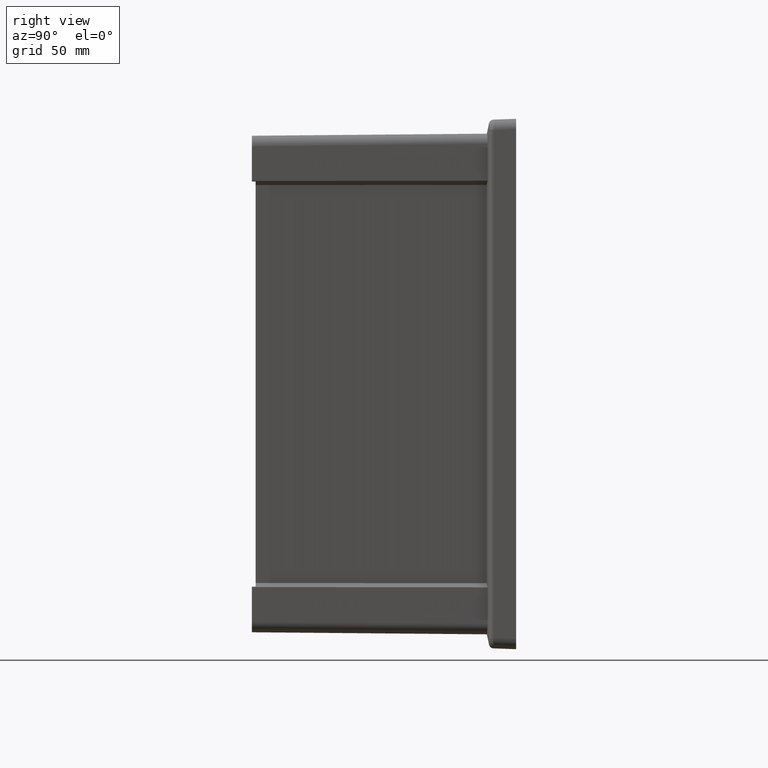
[diagram: clean part render]
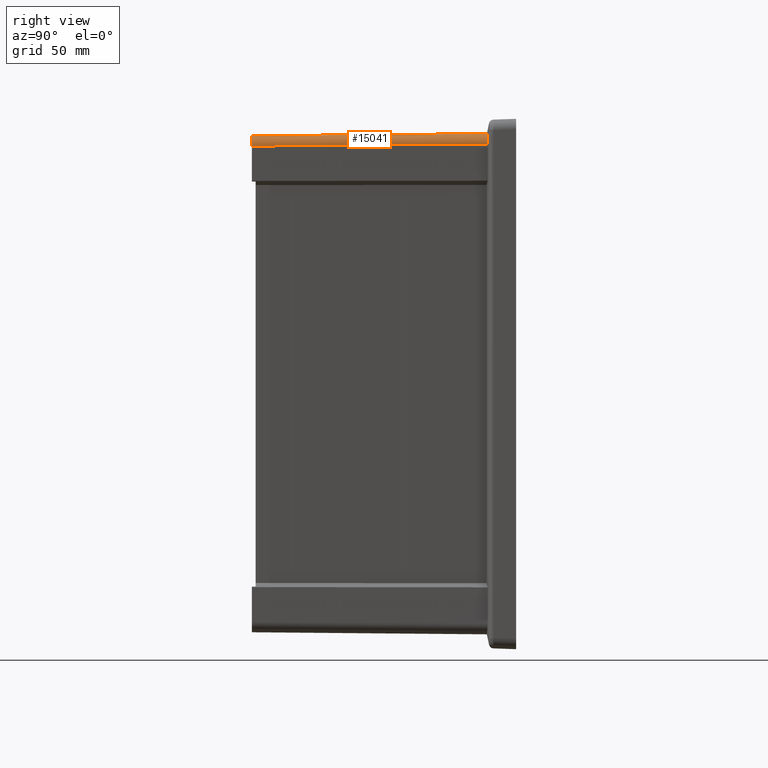
[diagram: same view with one face highlighted and labeled with its STEP entity id]
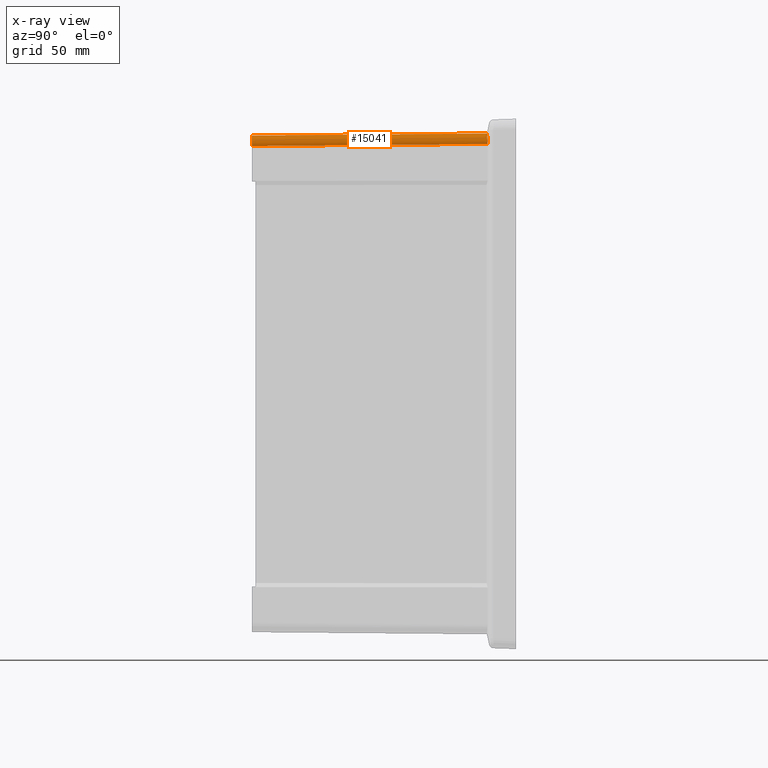
[diagram: x-ray of the same camera — body ghosted, the highlighted face saturated]
A machine part, right view. The second image highlights one B-rep face of the part: STEP entity #15041.
The next image is the same camera in x-ray: the body ghosted, the highlighted face saturated — about 0% of this face is hidden behind the body in this view.
In plain terms, the highlighted cylindrical surface (edge-blend (fillet) strip) has radius 5.5 mm, axis along (0.0087, 0.9999, 0.0087).
Its self-contained STEP definition (entity closure, byte-faithful):
#607 = CARTESIAN_POINT ( 'NONE',  ( 104.8379523124675900, -15.46041222498703100, 132.6299851446440000 ) ) ;
#613 = VERTEX_POINT ( 'NONE', #7668 ) ;
#637 = VERTEX_POINT ( 'NONE', #1633 ) ;
#647 = CARTESIAN_POINT ( 'NONE',  ( 106.0628286515175300, -15.40263503870971100, 131.8808171517067100 ) ) ;
#884 = CARTESIAN_POINT ( 'NONE',  ( 104.7291234140137700, -140.5000000000000000, 132.0071604515844700 ) ) ;
#1633 = CARTESIAN_POINT ( 'NONE',  ( 107.8261217599845200, -15.20838138915051900, 129.3164619533139900 ) ) ;
#1656 = LINE ( 'NONE', #5570, #3925 ) ;
#1816 = CARTESIAN_POINT ( 'NONE',  ( 103.7441299123959200, -15.49658720095716700, 132.9850668242828800 ) ) ;
#1947 = CARTESIAN_POINT ( 'NONE',  ( 108.0906553822860900, -16.34377846896294900, 127.5908648054330300 ) ) ;
#1971 = ORIENTED_EDGE ( 'NONE', *, *, #12874, .T. ) ;
#1973 = CYLINDRICAL_SURFACE ( 'NONE', #14706, 5.499999999999988500 ) ;
#2113 = CARTESIAN_POINT ( 'NONE',  ( 107.0071604515845800, -140.5000000000000000, 129.7291234140136900 ) ) ;
#2169 = CARTESIAN_POINT ( 'NONE',  ( 108.0086496996447800, -15.16958387788762300, 128.7618957875661200 ) ) ;
#2994 = CARTESIAN_POINT ( 'NONE',  ( 104.0276837312936800, -15.48778470893286900, 132.9169052768532700 ) ) ;
#3482 =( BOUNDED_CURVE ( )  B_SPLINE_CURVE ( 3, ( #8215, #2113, #884, #12851 ),
 .UNSPECIFIED., .F., .F. ) 
 B_SPLINE_CURVE_WITH_KNOTS ( ( 4, 4 ),
 ( 5.497825219993075100, 7.068545394366097400 ),
 .UNSPECIFIED. ) 
 CURVE ( )  GEOMETRIC_REPRESENTATION_ITEM ( )  RATIONAL_B_SPLINE_CURVE ( ( 1.000000000000000000, 0.8047558030806103400, 0.8047558030806103400, 1.000000000000000000 ) ) 
 REPRESENTATION_ITEM ( '' )  );
#3752 = CARTESIAN_POINT ( 'NONE',  ( 106.8738725606733800, -15.34072073283206600, 131.0726621254887900 ) ) ;
#3925 = VECTOR ( 'NONE', #9147, 1000.000000000000100 ) ;
#3987 = CARTESIAN_POINT ( 'NONE',  ( 107.6451174184510800, -15.24685504963420100, 129.8663990416016200 ) ) ;
#4043 = CARTESIAN_POINT ( 'NONE',  ( 105.3484925240456000, -15.43971781613216400, 132.3704342765232400 ) ) ;
#4466 = VECTOR ( 'NONE', #9234, 1000.000000000000100 ) ;
#4498 = CARTESIAN_POINT ( 'NONE',  ( 108.1010738657282500, -15.14993851492969600, 127.6012832888750900 ) ) ;
#5262 = CARTESIAN_POINT ( 'NONE',  ( 105.5969392656045000, -15.42821295401129900, 132.2186281305808700 ) ) ;
#5427 = CARTESIAN_POINT ( 'NONE',  ( 104.5738101787366100, -15.46972063104375800, 132.7393513751929700 ) ) ;
#5570 = CARTESIAN_POINT ( 'NONE',  ( 102.6121858598884300, -13.90062761959726600, 133.1119764367412900 ) ) ;
#5752 = CARTESIAN_POINT ( 'NONE',  ( 102.5979121214352000, -15.53623604125214200, 133.0977026982880600 ) ) ;
#6197 = VERTEX_POINT ( 'NONE', #8450 ) ;
#7668 = CARTESIAN_POINT ( 'NONE',  ( 108.1010738657282500, -15.14993851492969600, 127.6012832888750900 ) ) ;
#7827 = DIRECTION ( 'NONE',  ( 0.008726203243944236400, 0.9999238504775704900, 0.008726203243944236400 ) ) ;
#7930 = CARTESIAN_POINT ( 'NONE',  ( 107.0071604515845700, -140.5000000000000000, 126.5073698747315200 ) ) ;
#8133 = DIRECTION ( 'NONE',  ( 0.0000000000000000000, -0.008726535498373816700, 0.9999619230641713100 ) ) ;
#8215 = CARTESIAN_POINT ( 'NONE',  ( 107.0071604515845700, -140.5000000000000000, 126.5073698747315200 ) ) ;
#8399 =( BOUNDED_CURVE ( )  B_SPLINE_CURVE ( 3, ( #9452, #2169, #10656, #4498 ),
 .UNSPECIFIED., .F., .F. ) 
 B_SPLINE_CURVE_WITH_KNOTS ( ( 4, 4 ),
 ( 6.005297046354373300, 6.322526357496648200 ),
 .UNSPECIFIED. ) 
 CURVE ( )  GEOMETRIC_REPRESENTATION_ITEM ( )  RATIONAL_B_SPLINE_CURVE ( ( 1.000000000000000000, 0.9916313643747356500, 0.9916313643747356500, 1.000000000000000000 ) ) 
 REPRESENTATION_ITEM ( '' )  );
#8450 = CARTESIAN_POINT ( 'NONE',  ( 101.5073698747316100, -140.5000000000000000, 132.0071604515844400 ) ) ;
#8524 = ORIENTED_EDGE ( 'NONE', *, *, #12137, .F. ) ;
#8619 = CARTESIAN_POINT ( 'NONE',  ( 107.8261217599845200, -15.20838138915051900, 129.3164619533139900 ) ) ;
#9056 = CARTESIAN_POINT ( 'NONE',  ( 102.5979121214352000, -15.53623604125214200, 133.0977026982880600 ) ) ;
#9147 = DIRECTION ( 'NONE',  ( 0.008726203243944236400, 0.9999238504775704900, 0.008726203243944238200 ) ) ;
#9234 = DIRECTION ( 'NONE',  ( -0.008726203243944238200, -0.9999238504775704900, -0.008726203243944236400 ) ) ;
#9344 = ORIENTED_EDGE ( 'NONE', *, *, #14174, .F. ) ;
#9452 = CARTESIAN_POINT ( 'NONE',  ( 107.8261217599845200, -15.20838138915051900, 129.3164619533139900 ) ) ;
#9843 = CARTESIAN_POINT ( 'NONE',  ( 106.6853670597733000, -15.35770102985217600, 131.2920578526133400 ) ) ;
#9953 = CARTESIAN_POINT ( 'NONE',  ( 106.2803929699044800, -15.38859807377821600, 131.6953669211872300 ) ) ;
#10112 = VERTEX_POINT ( 'NONE', #5752 ) ;
#10656 = CARTESIAN_POINT ( 'NONE',  ( 108.1010738657282500, -15.14993851492969600, 128.1853446194411400 ) ) ;
#10993 = CARTESIAN_POINT ( 'NONE',  ( 107.3841140517633100, -15.28657172145459400, 130.3738871134141300 ) ) ;
#11373 = EDGE_CURVE ( 'NONE', #6197, #10112, #1656, .T. ) ;
#11456 = EDGE_CURVE ( 'NONE', #637, #613, #8399, .T. ) ;
#12137 = EDGE_CURVE ( 'NONE', #14993, #6197, #3482, .T. ) ;
#12498 = CARTESIAN_POINT ( 'NONE',  ( 103.1750326903252700, -15.51509437445667000, 133.0751229090611800 ) ) ;
#12635 = ORIENTED_EDGE ( 'NONE', *, *, #11456, .F. ) ;
#12851 = CARTESIAN_POINT ( 'NONE',  ( 101.5073698747316100, -140.5000000000000000, 132.0071604515844400 ) ) ;
#12874 = EDGE_CURVE ( 'NONE', #637, #10112, #15612, .T. ) ;
#13471 = FACE_OUTER_BOUND ( 'NONE', #13520, .T. ) ;
#13520 = EDGE_LOOP ( 'NONE', ( #8524, #9344, #12635, #1971, #14030 ) ) ;
#13693 = LINE ( 'NONE', #1947, #4466 ) ;
#13823 = CARTESIAN_POINT ( 'NONE',  ( 102.6121858598884300, -13.85263167435621100, 127.6121858598883400 ) ) ;
#13883 = CARTESIAN_POINT ( 'NONE',  ( 102.8878140561210600, -15.52485184727991200, 133.0978020466436900 ) ) ;
#14030 = ORIENTED_EDGE ( 'NONE', *, *, #11373, .F. ) ;
#14174 = EDGE_CURVE ( 'NONE', #613, #14993, #13693, .T. ) ;
#14706 = AXIS2_PLACEMENT_3D ( 'NONE', #13823, #7827, #8133 ) ;
#14993 = VERTEX_POINT ( 'NONE', #7930 ) ;
#15041 = ADVANCED_FACE ( 'NONE', ( #13471 ), #1973, .T. ) ;
#15612 = B_SPLINE_CURVE_WITH_KNOTS ( 'NONE', 3,
 ( #8619, #3987, #10993, #3752, #9843, #9953, #647, #5262, #4043, #607, #5427, #2994, #1816, #12498, #13883, #9056 ),
 .UNSPECIFIED., .F., .F.,
 ( 4, 2, 2, 2, 2, 2, 2, 4 ),
 ( 0.0000000000000000000, 0.001716028737363093600, 0.002574043106044652500, 0.003432057474726211500, 0.004290071843407770200, 0.005148086212089329200, 0.006006100580770888300, 0.006864114949452447400 ),
 .UNSPECIFIED. ) ;